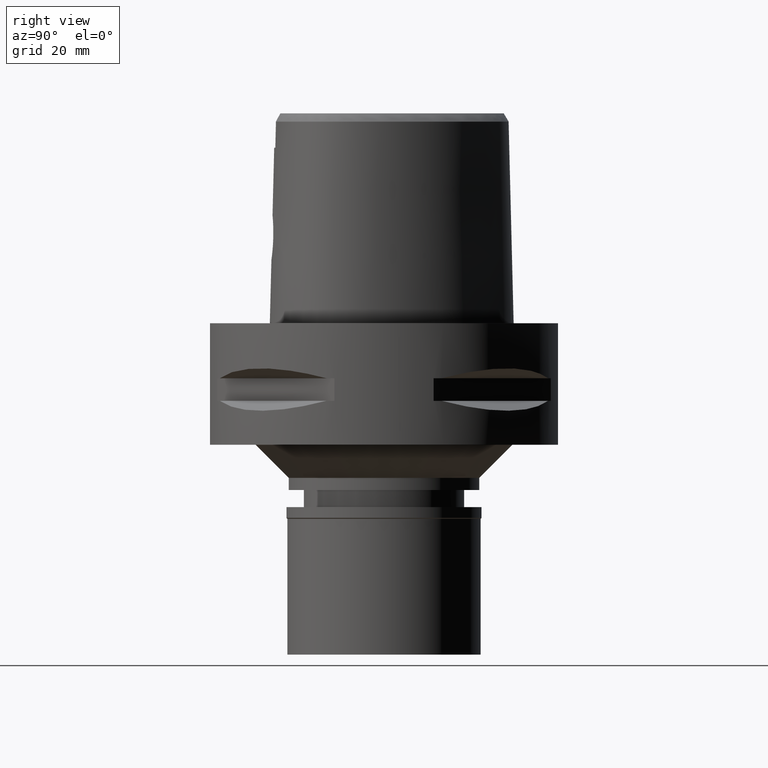
[diagram: clean part render]
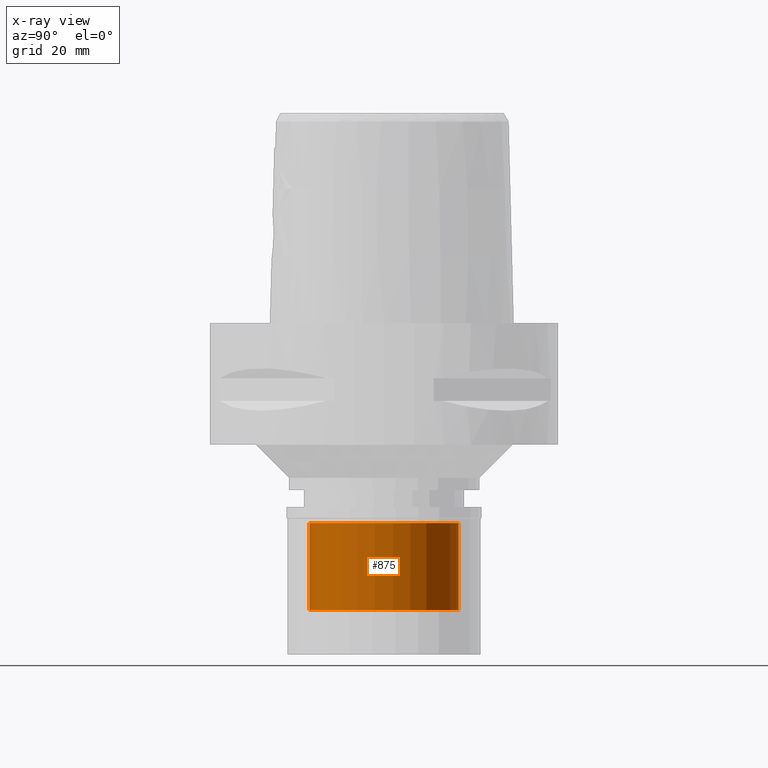
[diagram: x-ray — body ghosted, one internal face saturated and labeled with its STEP entity id]
A machine part, right view, then the same camera in x-ray: the body is ghosted and one INTERNAL B-rep face — a face not visible from any outside direction — is saturated and labeled: STEP entity #875.
In plain terms, the highlighted cylindrical surface (partial cylindrical patch) has radius 13.5 mm, axis along (0, 0, -1).
Its self-contained STEP definition (entity closure, byte-faithful):
#95 = DIRECTION ( 'NONE',  ( 0.0000000000000000000, 0.0000000000000000000, 1.000000000000000000 ) ) ;
#151 = VERTEX_POINT ( 'NONE', #4304 ) ;
#211 = EDGE_CURVE ( 'NONE', #151, #2657, #4701, .T. ) ;
#269 = AXIS2_PLACEMENT_3D ( 'NONE', #4108, #95, #822 ) ;
#292 = DIRECTION ( 'NONE',  ( 0.0000000000000000000, 1.000000000000000000, 0.0000000000000000000 ) ) ;
#312 = CARTESIAN_POINT ( 'NONE',  ( 0.0000000000000000000, -13.50000000000000000, -18.70000000000000284 ) ) ;
#373 = FACE_OUTER_BOUND ( 'NONE', #1246, .T. ) ;
#565 = AXIS2_PLACEMENT_3D ( 'NONE', #3196, #4699, #292 ) ;
#582 = VECTOR ( 'NONE', #3173, 1000.000000000000000 ) ;
#595 = CARTESIAN_POINT ( 'NONE',  ( 0.0000000000000000000, -13.50000000000000000, -2.899999999999999911 ) ) ;
#609 = LINE ( 'NONE', #3535, #582 ) ;
#775 = VERTEX_POINT ( 'NONE', #2261 ) ;
#807 = DIRECTION ( 'NONE',  ( 0.0000000000000000000, 0.0000000000000000000, -1.000000000000000000 ) ) ;
#822 = DIRECTION ( 'NONE',  ( 0.0000000000000000000, -1.000000000000000000, 0.0000000000000000000 ) ) ;
#875 = ADVANCED_FACE ( 'NONE', ( #373 ), #2912, .F. ) ;
#1087 = DIRECTION ( 'NONE',  ( 0.0000000000000000000, -1.000000000000000000, 0.0000000000000000000 ) ) ;
#1246 = EDGE_LOOP ( 'NONE', ( #3353, #3736, #3698, #1307 ) ) ;
#1307 = ORIENTED_EDGE ( 'NONE', *, *, #2984, .F. ) ;
#1769 = DIRECTION ( 'NONE',  ( 0.0000000000000000000, 0.0000000000000000000, 1.000000000000000000 ) ) ;
#1785 = CIRCLE ( 'NONE', #269, 13.50000000000000000 ) ;
#1976 = EDGE_CURVE ( 'NONE', #3973, #775, #1785, .T. ) ;
#2261 = CARTESIAN_POINT ( 'NONE',  ( 0.0000000000000000000, 13.50000000000000000, -2.899999999999999911 ) ) ;
#2298 = CARTESIAN_POINT ( 'NONE',  ( 0.0000000000000000000, -13.50000000000000000, -18.70000000000000284 ) ) ;
#2424 = VECTOR ( 'NONE', #1769, 1000.000000000000000 ) ;
#2523 = LINE ( 'NONE', #312, #2424 ) ;
#2657 = VERTEX_POINT ( 'NONE', #2298 ) ;
#2912 = CYLINDRICAL_SURFACE ( 'NONE', #2931, 13.50000000000000000 ) ;
#2931 = AXIS2_PLACEMENT_3D ( 'NONE', #4376, #807, #1087 ) ;
#2984 = EDGE_CURVE ( 'NONE', #151, #775, #609, .T. ) ;
#3143 = EDGE_CURVE ( 'NONE', #2657, #3973, #2523, .T. ) ;
#3173 = DIRECTION ( 'NONE',  ( 0.0000000000000000000, 0.0000000000000000000, 1.000000000000000000 ) ) ;
#3196 = CARTESIAN_POINT ( 'NONE',  ( 0.0000000000000000000, 0.0000000000000000000, -18.70000000000000284 ) ) ;
#3353 = ORIENTED_EDGE ( 'NONE', *, *, #211, .T. ) ;
#3535 = CARTESIAN_POINT ( 'NONE',  ( 0.0000000000000000000, 13.50000000000000000, -18.70000000000000284 ) ) ;
#3698 = ORIENTED_EDGE ( 'NONE', *, *, #1976, .T. ) ;
#3736 = ORIENTED_EDGE ( 'NONE', *, *, #3143, .T. ) ;
#3973 = VERTEX_POINT ( 'NONE', #595 ) ;
#4108 = CARTESIAN_POINT ( 'NONE',  ( 0.0000000000000000000, 0.0000000000000000000, -2.899999999999999911 ) ) ;
#4304 = CARTESIAN_POINT ( 'NONE',  ( 0.0000000000000000000, 13.50000000000000000, -18.70000000000000284 ) ) ;
#4376 = CARTESIAN_POINT ( 'NONE',  ( 0.0000000000000000000, 0.0000000000000000000, 0.0000000000000000000 ) ) ;
#4699 = DIRECTION ( 'NONE',  ( 0.0000000000000000000, 0.0000000000000000000, -1.000000000000000000 ) ) ;
#4701 = CIRCLE ( 'NONE', #565, 13.50000000000000000 ) ;